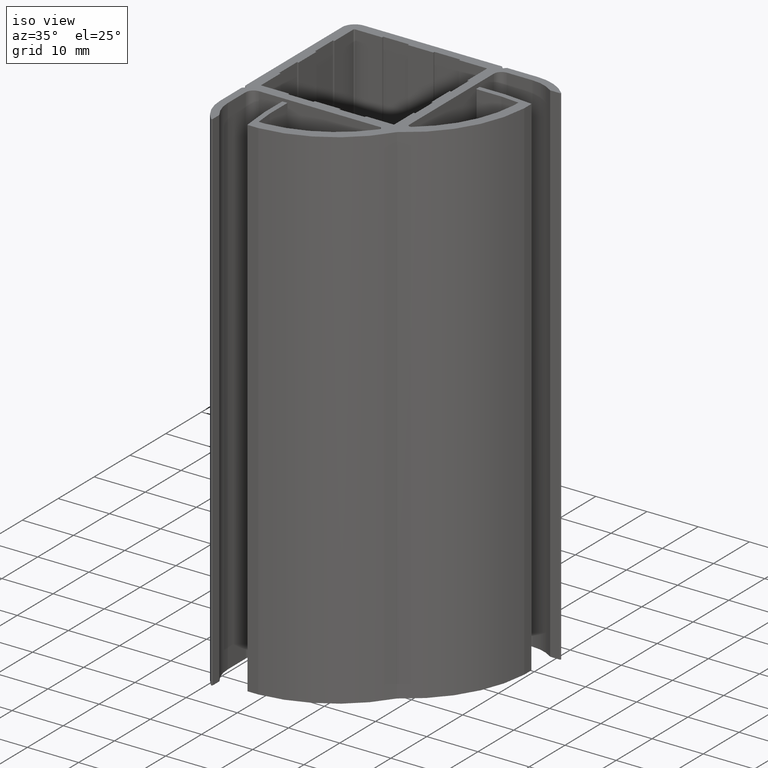
[diagram: clean part render]
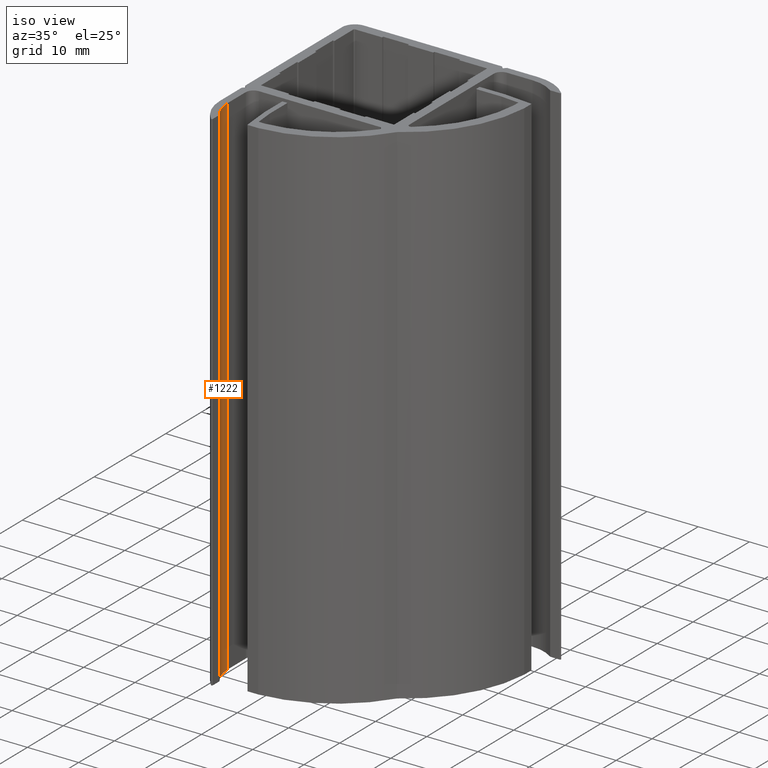
[diagram: same view with one face highlighted and labeled with its STEP entity id]
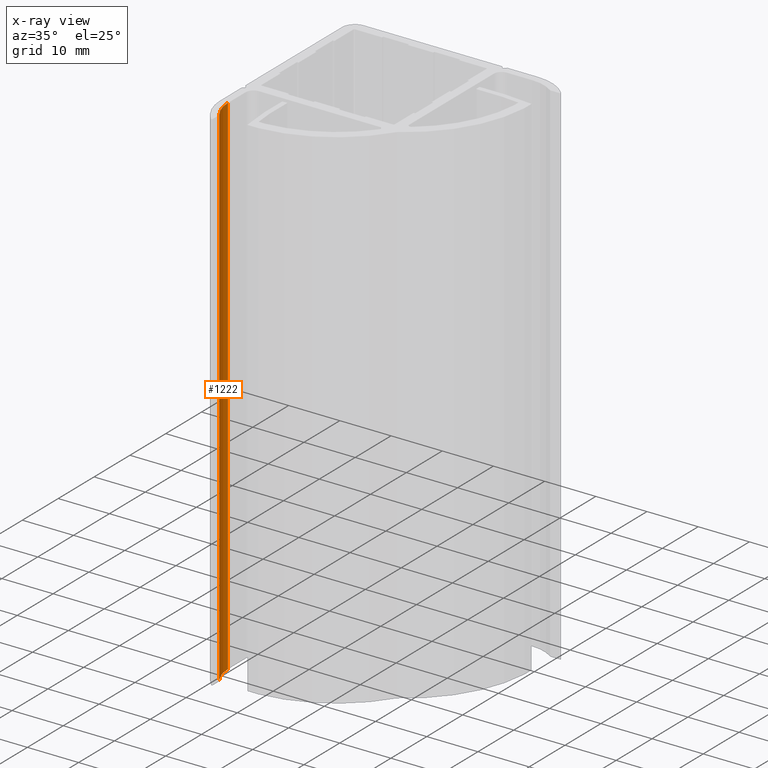
[diagram: x-ray of the same camera — body ghosted, the highlighted face saturated]
A machine part, iso view. The second image highlights one B-rep face of the part: STEP entity #1222.
The next image is the same camera in x-ray: the body ghosted, the highlighted face saturated — about 0% of this face is hidden behind the body in this view.
In plain terms, the highlighted cylindrical surface (partial cylindrical patch) has radius 7.5 mm, axis along (0, 0, -1).
Its self-contained STEP definition (entity closure, byte-faithful):
#1164=CARTESIAN_POINT('',(2.999999999998408,-25.000263909868607,-100.0));
#1165=VERTEX_POINT('',#1164);
#1172=CARTESIAN_POINT('',(2.999999999998408,-25.000263909868607,0.0));
#1173=VERTEX_POINT('',#1172);
#1174=CARTESIAN_POINT('',(2.999999999998408,-25.000263909868607,-100.0));
#1175=DIRECTION('',(0.0,0.0,1.0));
#1176=VECTOR('',#1175,100.0);
#1177=LINE('',#1174,#1176);
#1178=EDGE_CURVE('',#1165,#1173,#1177,.T.);
#1190=CARTESIAN_POINT('',(9.0,-20.500263909870796,-100.0));
#1191=DIRECTION('',(0.0,0.0,-1.0));
#1192=DIRECTION('',(-0.800000000000219,-0.599999999999708,0.0));
#1193=AXIS2_PLACEMENT_3D('',#1190,#1191,#1192);
#1194=CYLINDRICAL_SURFACE('',#1193,7.500000000000000);
#1195=CARTESIAN_POINT('',(1.500000000000000,-20.500263909870796,-100.0));
#1196=VERTEX_POINT('',#1195);
#1197=CARTESIAN_POINT('',(9.0,-20.500263909870796,-100.0));
#1198=DIRECTION('',(0.0,0.0,-1.0));
#1199=DIRECTION('',(1.0,0.0,0.0));
#1200=AXIS2_PLACEMENT_3D('',#1197,#1198,#1199);
#1201=CIRCLE('',#1200,7.500000000000000);
#1202=EDGE_CURVE('',#1165,#1196,#1201,.T.);
#1203=ORIENTED_EDGE('',*,*,#1202,.T.);
#1204=CARTESIAN_POINT('',(1.500000000000000,-20.500263909870796,0.0));
#1205=VERTEX_POINT('',#1204);
#1206=CARTESIAN_POINT('',(1.500000000000000,-20.500263909870796,-100.0));
#1207=DIRECTION('',(0.0,0.0,1.0));
#1208=VECTOR('',#1207,100.0);
#1209=LINE('',#1206,#1208);
#1210=EDGE_CURVE('',#1196,#1205,#1209,.T.);
#1211=ORIENTED_EDGE('',*,*,#1210,.T.);
#1212=CARTESIAN_POINT('',(9.0,-20.500263909870796,0.0));
#1213=DIRECTION('',(0.0,0.0,-1.0));
#1214=DIRECTION('',(1.0,0.0,0.0));
#1215=AXIS2_PLACEMENT_3D('',#1212,#1213,#1214);
#1216=CIRCLE('',#1215,7.500000000000000);
#1217=EDGE_CURVE('',#1173,#1205,#1216,.T.);
#1218=ORIENTED_EDGE('',*,*,#1217,.F.);
#1219=ORIENTED_EDGE('',*,*,#1178,.F.);
#1220=EDGE_LOOP('',(#1203,#1211,#1218,#1219));
#1221=FACE_OUTER_BOUND('',#1220,.T.);
#1222=ADVANCED_FACE('',(#1221),#1194,.F.);